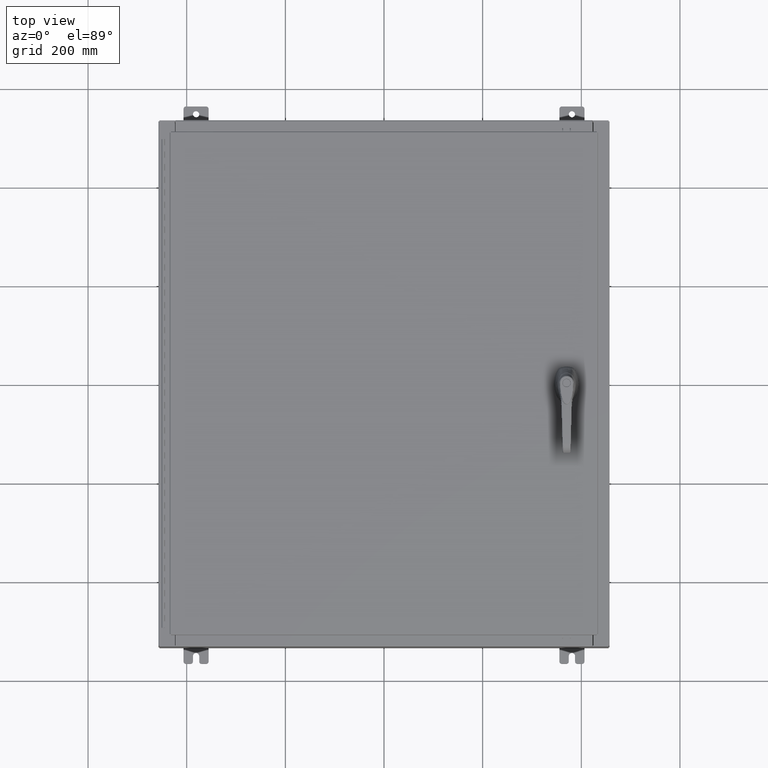
[diagram: clean part render]
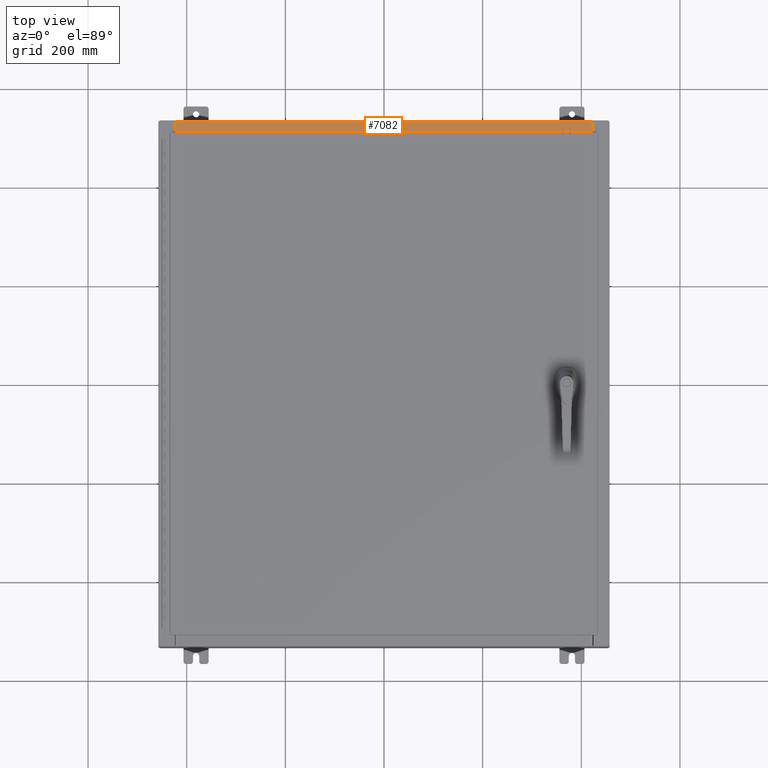
[diagram: same view with one face highlighted and labeled with its STEP entity id]
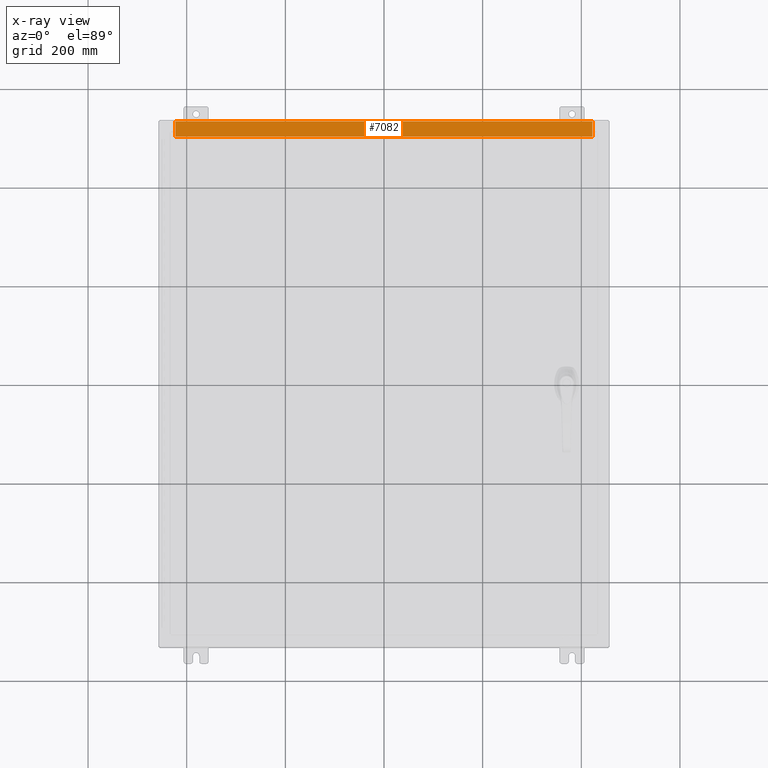
[diagram: x-ray of the same camera — body ghosted, the highlighted face saturated]
A machine part, top view. The second image highlights one B-rep face of the part: STEP entity #7082.
The next image is the same camera in x-ray: the body ghosted, the highlighted face saturated — about 0% of this face is hidden behind the body in this view.
In plain terms, the highlighted planar face has unit normal (0, 0, 1).
Its self-contained STEP definition (entity closure, byte-faithful):
#3667 = LINE ( 'NONE', #25565, #53675 ) ;
#4733 = DIRECTION ( 'NONE',  ( -1.000000000000000000, 0.0000000000000000000, 0.0000000000000000000 ) ) ;
#7082 = ADVANCED_FACE ( 'NONE', ( #102278 ), #21291, .T. ) ;
#8125 = ORIENTED_EDGE ( 'NONE', *, *, #122524, .F. ) ;
#8327 = DIRECTION ( 'NONE',  ( -1.000000000000000000, 3.284023746380717400E-017, -1.171208052571274300E-031 ) ) ;
#14575 = EDGE_CURVE ( 'NONE', #103754, #44328, #54129, .T. ) ;
#18417 = VERTEX_POINT ( 'NONE', #32557 ) ;
#19557 = ORIENTED_EDGE ( 'NONE', *, *, #42966, .F. ) ;
#21291 = PLANE ( 'NONE',  #74233 ) ;
#23167 = ORIENTED_EDGE ( 'NONE', *, *, #14575, .T. ) ;
#23966 = VERTEX_POINT ( 'NONE', #33285 ) ;
#25565 = CARTESIAN_POINT ( 'NONE',  ( -16.63719999999999600, -0.07469999999999973900, 4.000000000000000900 ) ) ;
#27386 = LINE ( 'NONE', #100252, #104223 ) ;
#27595 = VECTOR ( 'NONE', #8327, 39.37007874015748100 ) ;
#31309 = DIRECTION ( 'NONE',  ( 0.0000000000000000000, 3.566381192773190000E-015, 1.000000000000000000 ) ) ;
#32557 = CARTESIAN_POINT ( 'NONE',  ( -16.63719999999999600, -1.287299999999999200, 4.000000000000004400 ) ) ;
#33285 = CARTESIAN_POINT ( 'NONE',  ( 16.63720000000000400, -1.287299999999999900, 4.000000000000004400 ) ) ;
#36133 = EDGE_LOOP ( 'NONE', ( #93072, #19557, #8125, #23167 ) ) ;
#40124 = DIRECTION ( 'NONE',  ( -0.0000000000000000000, -1.000000000000000000, 3.566381192773190000E-015 ) ) ;
#41667 = DIRECTION ( 'NONE',  ( -0.0000000000000000000, 1.000000000000000000, -3.566381192773190000E-015 ) ) ;
#42966 = EDGE_CURVE ( 'NONE', #23966, #18417, #83828, .T. ) ;
#44328 = VERTEX_POINT ( 'NONE', #45712 ) ;
#45712 = CARTESIAN_POINT ( 'NONE',  ( -16.63719999999999600, -0.08769999999999972300, 4.000000000000000900 ) ) ;
#53675 = VECTOR ( 'NONE', #41667, 39.37007874015748100 ) ;
#54129 = LINE ( 'NONE', #128422, #27595 ) ;
#57060 = VECTOR ( 'NONE', #4733, 39.37007874015748100 ) ;
#57061 = EDGE_CURVE ( 'NONE', #18417, #44328, #3667, .T. ) ;
#74233 = AXIS2_PLACEMENT_3D ( 'NONE', #91348, #31309, #101447 ) ;
#83828 = LINE ( 'NONE', #124802, #57060 ) ;
#91348 = CARTESIAN_POINT ( 'NONE',  ( 0.0000000000000000000, 1.425992975200418500E-014, 4.000000000000000900 ) ) ;
#93072 = ORIENTED_EDGE ( 'NONE', *, *, #57061, .F. ) ;
#100252 = CARTESIAN_POINT ( 'NONE',  ( 16.63720000000000400, -1.300299999999999800, 4.000000000000004400 ) ) ;
#101447 = DIRECTION ( 'NONE',  ( 0.0000000000000000000, -1.000000000000000000, 3.566381192773190000E-015 ) ) ;
#102278 = FACE_OUTER_BOUND ( 'NONE', #36133, .T. ) ;
#103754 = VERTEX_POINT ( 'NONE', #116417 ) ;
#104223 = VECTOR ( 'NONE', #40124, 39.37007874015748100 ) ;
#116417 = CARTESIAN_POINT ( 'NONE',  ( 16.63720000000000700, -0.08769999999999937600, 4.000000000000000900 ) ) ;
#122524 = EDGE_CURVE ( 'NONE', #103754, #23966, #27386, .T. ) ;
#124802 = CARTESIAN_POINT ( 'NONE',  ( 16.63720000000000700, -1.287299999999999900, 4.000000000000004400 ) ) ;
#128422 = CARTESIAN_POINT ( 'NONE',  ( -2.880088825576348200E-018, -0.08769999999999972300, 4.000000000000000900 ) ) ;